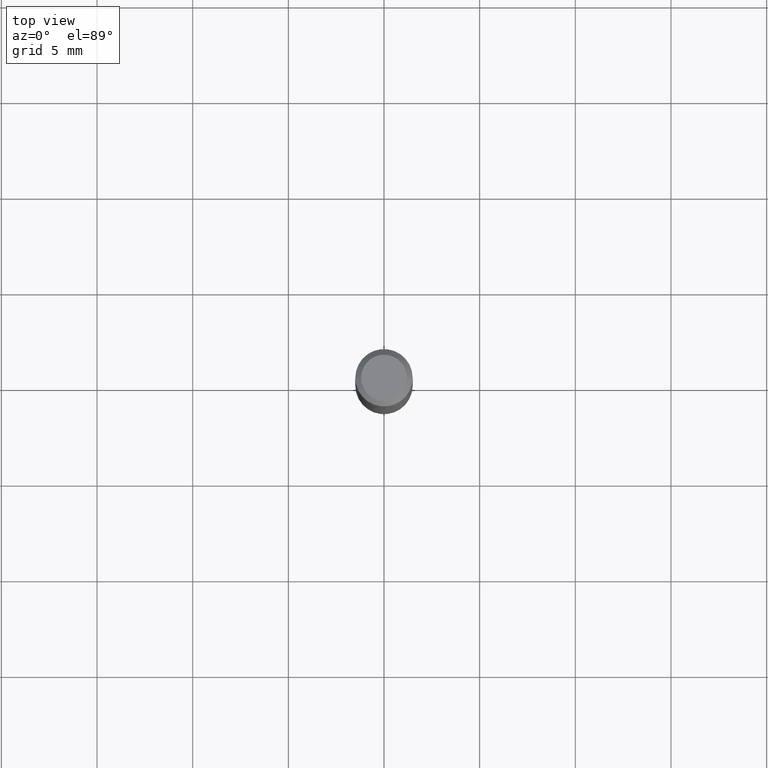
[diagram: clean part render]
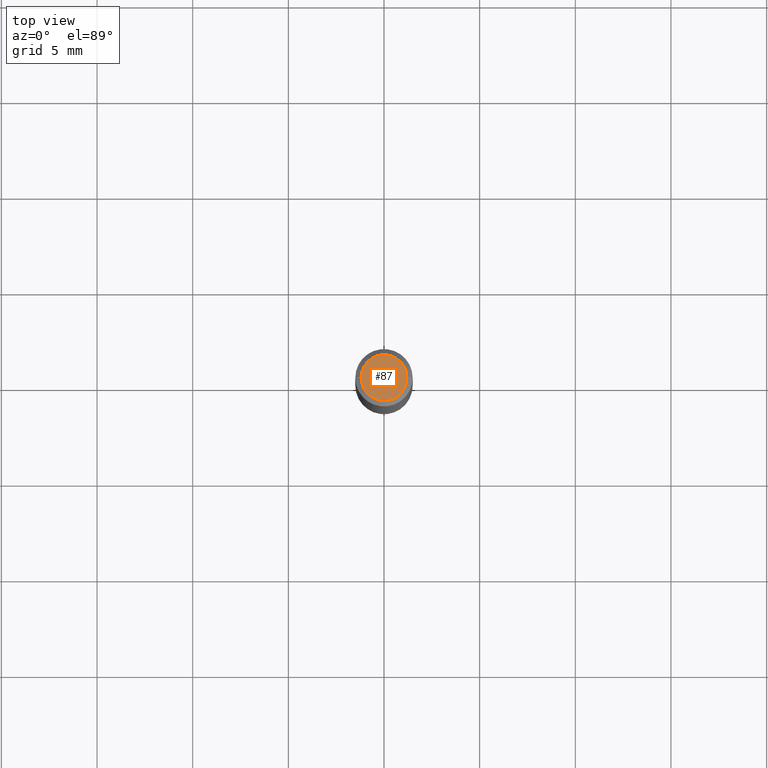
[diagram: same view with one face highlighted and labeled with its STEP entity id]
A machine part, top view. The second image highlights one B-rep face of the part: STEP entity #87.
In plain terms, the highlighted planar face has unit normal (0, -0, -1).
Its self-contained STEP definition (entity closure, byte-faithful):
#27 = CARTESIAN_POINT ( 'NONE',  ( 0.04724000000000000421, -3.852183633974369345E-16, -3.380025165621689721E-19 ) ) ;
#57 = VERTEX_POINT ( 'NONE', #27 ) ;
#63 = ORIENTED_EDGE ( 'NONE', *, *, #428, .T. ) ;
#86 = DIRECTION ( 'NONE',  ( 1.000000000000000000, -6.982962677686266711E-15, 4.876185090822587894E-29 ) ) ;
#87 = ADVANCED_FACE ( 'NONE', ( #336 ), #296, .F. ) ;
#90 = EDGE_LOOP ( 'NONE', ( #419, #63 ) ) ;
#116 = CARTESIAN_POINT ( 'NONE',  ( -0.04724000000000000421, 3.504923541997677355E-16, -3.380025165670481712E-19 ) ) ;
#178 = CIRCLE ( 'NONE', #415, 0.04724000000000000421 ) ;
#184 = CARTESIAN_POINT ( 'NONE',  ( 4.132873053354867254E-48, -5.900647395337818946E-34, -1.690012582823346072E-19 ) ) ;
#227 = DIRECTION ( 'NONE',  ( 2.438088387897960049E-29, -3.491481338843145188E-15, -1.000000000000000000 ) ) ;
#278 = DIRECTION ( 'NONE',  ( -2.445468806185136597E-29, 3.491481338843145583E-15, 1.000000000000000000 ) ) ;
#296 = PLANE ( 'NONE',  #307 ) ;
#298 = DIRECTION ( 'NONE',  ( -1.000000000000000000, 6.982962677686265922E-15, -4.876176775795935793E-29 ) ) ;
#304 = DIRECTION ( 'NONE',  ( -2.445468806185136597E-29, 3.491481338843145583E-15, 1.000000000000000000 ) ) ;
#307 = AXIS2_PLACEMENT_3D ( 'NONE', #184, #227, #298 ) ;
#310 = CIRCLE ( 'NONE', #460, 0.04724000000000000421 ) ;
#336 = FACE_OUTER_BOUND ( 'NONE', #90, .T. ) ;
#347 = CARTESIAN_POINT ( 'NONE',  ( 8.265746106709734507E-48, -1.180129479067563789E-33, -3.380025165646692144E-19 ) ) ;
#351 = EDGE_CURVE ( 'NONE', #401, #57, #310, .T. ) ;
#353 = CARTESIAN_POINT ( 'NONE',  ( 8.265746106709734507E-48, -1.180129479067563789E-33, -3.380025165646692144E-19 ) ) ;
#358 = DIRECTION ( 'NONE',  ( 1.000000000000000000, -6.982962677686266711E-15, 4.876185090822587894E-29 ) ) ;
#401 = VERTEX_POINT ( 'NONE', #116 ) ;
#415 = AXIS2_PLACEMENT_3D ( 'NONE', #347, #304, #86 ) ;
#419 = ORIENTED_EDGE ( 'NONE', *, *, #351, .T. ) ;
#428 = EDGE_CURVE ( 'NONE', #57, #401, #178, .T. ) ;
#460 = AXIS2_PLACEMENT_3D ( 'NONE', #353, #278, #358 ) ;